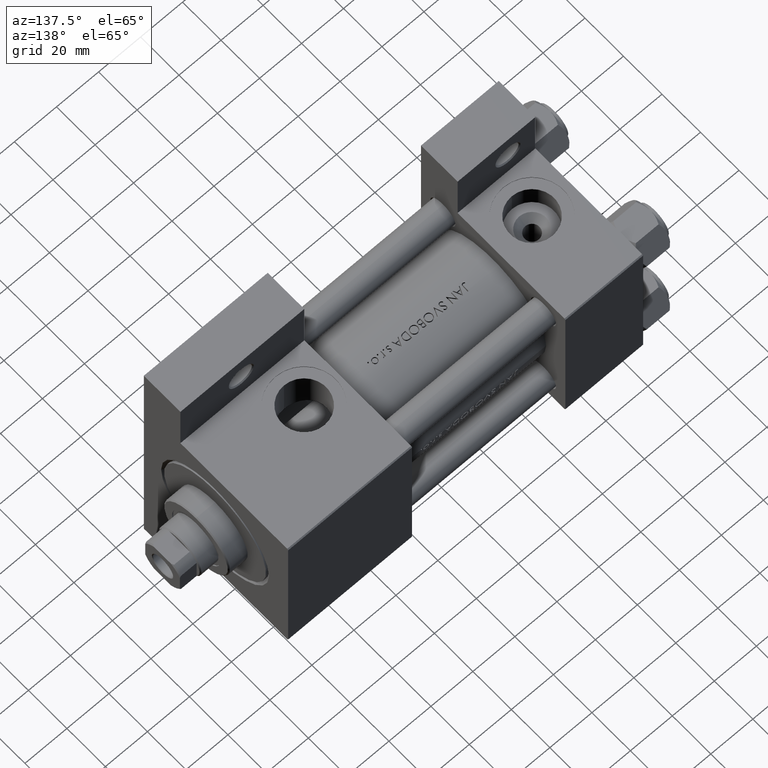
[diagram: clean part render]
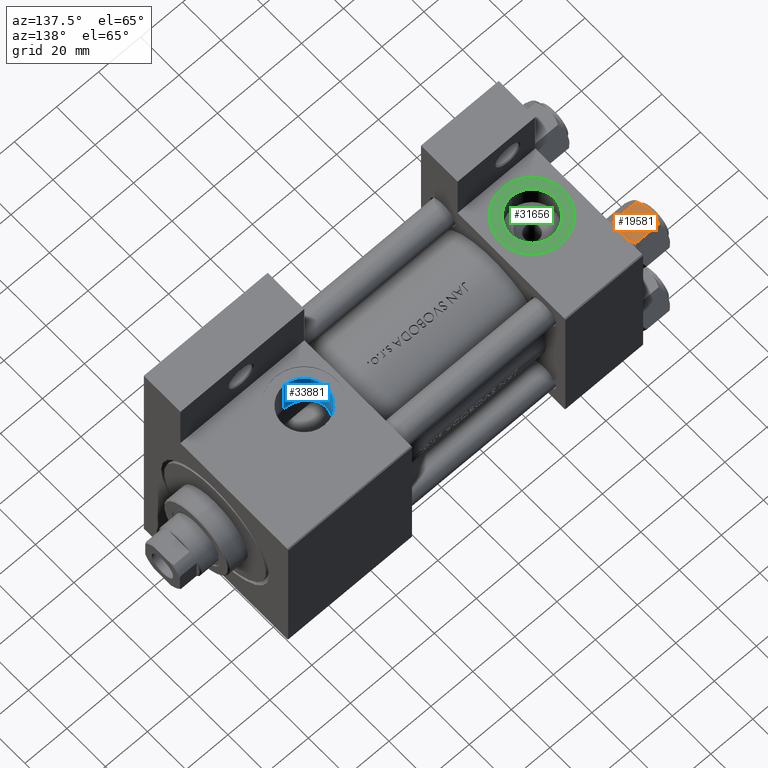
[diagram: same view with three faces highlighted in distinct colors, each labeled with its STEP entity id]
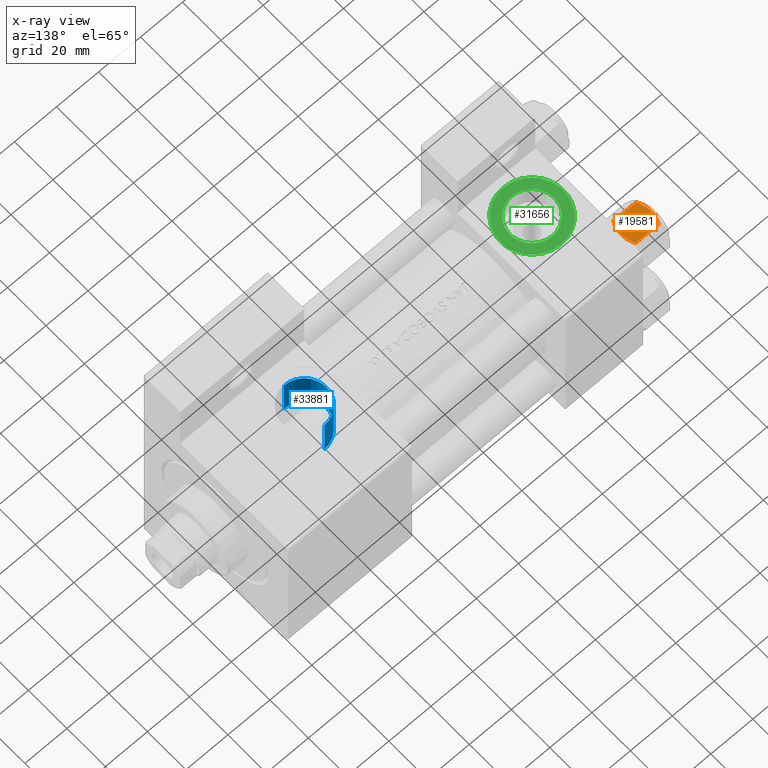
[diagram: x-ray of the same camera — body ghosted, the three highlighted faces saturated]
A machine part, auxiliary view with three faces highlighted in distinct colors.
The next image is the same camera in x-ray (body ghosted, the three faces saturated) — at least one of them is partly hidden behind the body in this view.
Their STEP definitions:

[orange] entity #19581 — the highlighted planar face has unit normal (0, -0, -1).
#24 = CARTESIAN_POINT ( 'NONE',  ( 0.2543996698847487137, -10.06321519197517844, 2.651777813537460036E-15 ) ) ;
#358 = VERTEX_POINT ( 'NONE', #8633 ) ;
#702 = EDGE_CURVE ( 'NONE', #45174, #2791, #14122, .T. ) ;
#1903 = AXIS2_PLACEMENT_3D ( 'NONE', #38361, #4241, #19408 ) ;
#2165 = CARTESIAN_POINT ( 'NONE',  ( 3.958929922320422179, -10.06321519197517489, -13.25786014976459803 ) ) ;
#2791 = VERTEX_POINT ( 'NONE', #45605 ) ;
#2952 = CARTESIAN_POINT ( 'NONE',  ( -1.018274738099085086, -10.06321519197517667, -13.95177257919929126 ) ) ;
#3180 = B_SPLINE_CURVE_WITH_KNOTS ( 'NONE', 3,
 ( #22426, #24, #7491, #33392, #22680, #29661, #41858, #30401, #38127 ),
 .UNSPECIFIED., .F., .F.,
 ( 4, 2, 1, 2, 4 ),
 ( 0.02074012592819902620, 0.02149589804477579011, 0.02225167016135255402, 0.02376321439450608530, 0.02678630286081314441 ),
 .UNSPECIFIED. ) ;
#4241 = DIRECTION ( 'NONE',  ( -1.492877345935290102E-16, 1.000000000000000000, 0.000000000000000000 ) ) ;
#5662 = CARTESIAN_POINT ( 'NONE',  ( 3.474497094393254049, -10.06321519197517667, -13.42730390989572697 ) ) ;
#7011 = EDGE_LOOP ( 'NONE', ( #38909, #26836, #47859, #17389, #16964, #26888 ) ) ;
#7016 = VECTOR ( 'NONE', #15494, 1000.000000000000000 ) ;
#7491 = CARTESIAN_POINT ( 'NONE',  ( 0.5112014849988887333, -10.06321519197517667, -0.009803979428911684807 ) ) ;
#7789 = LINE ( 'NONE', #41665, #7016 ) ;
#8633 = CARTESIAN_POINT ( 'NONE',  ( -5.810000000000000497, -10.06321519197517844, -12.44321519197518455 ) ) ;
#8755 = CARTESIAN_POINT ( 'NONE',  ( 1.502314598737159820E-15, -10.06321519197518022, 0.000000000000000000 ) ) ;
#10078 = VERTEX_POINT ( 'NONE', #34311 ) ;
#11501 = CARTESIAN_POINT ( 'NONE',  ( -5.810000000000000497, -10.06321519197517844, -14.00000000000000000 ) ) ;
#12728 = CARTESIAN_POINT ( 'NONE',  ( -4.900668367960797411, -10.06321519197517844, -1.121556683709773683 ) ) ;
#13132 = CARTESIAN_POINT ( 'NONE',  ( 5.810000000000000497, -10.06321519197517667, -1.556784808024813671 ) ) ;
#14122 = B_SPLINE_CURVE_WITH_KNOTS ( 'NONE', 3,
 ( #46850, #46368, #12728, #20424, #43118, #31660, #22543, #8755 ),
 .UNSPECIFIED., .F., .F.,
 ( 4, 2, 2, 4 ),
 ( 0.01467889604968879505, 0.01619420351931635110, 0.01770951098894391063, 0.02074012592819902620 ),
 .UNSPECIFIED. ) ;
#14402 = CARTESIAN_POINT ( 'NONE',  ( -0.2543996698847483806, -10.06321519197517667, -14.00000000000000355 ) ) ;
#15494 = DIRECTION ( 'NONE',  ( -0.000000000000000000, -0.000000000000000000, 1.000000000000000000 ) ) ;
#16964 = ORIENTED_EDGE ( 'NONE', *, *, #31529, .F. ) ;
#17389 = ORIENTED_EDGE ( 'NONE', *, *, #702, .F. ) ;
#17593 = CARTESIAN_POINT ( 'NONE',  ( 5.359707691559676412, -10.06321519197517844, -12.66836134619534882 ) ) ;
#18127 = CARTESIAN_POINT ( 'NONE',  ( -5.810000000000000497, -10.06321519197517844, -12.44321519197518455 ) ) ;
#19408 = DIRECTION ( 'NONE',  ( -1.000000000000000000, -1.492877345935290102E-16, 0.000000000000000000 ) ) ;
#19581 = ADVANCED_FACE ( 'NONE', ( #19888 ), #23161, .F. ) ;
#19733 = B_SPLINE_CURVE_WITH_KNOTS ( 'NONE', 3,
 ( #31813, #17593, #32548, #2165, #5662, #28820, #29066, #28087 ),
 .UNSPECIFIED., .F., .F.,
 ( 4, 2, 2, 4 ),
 ( 0.01467889604968879332, 0.01619420351931635110, 0.01770951098894391063, 0.02074012592819902620 ),
 .UNSPECIFIED. ) ;
#19888 = FACE_OUTER_BOUND ( 'NONE', #7011, .T. ) ;
#20424 = CARTESIAN_POINT ( 'NONE',  ( -3.958929922320422179, -10.06321519197517667, -0.7421398502353990789 ) ) ;
#22366 = CARTESIAN_POINT ( 'NONE',  ( -3.960942496020602555, -10.06321519197517667, -13.28842716763895737 ) ) ;
#22426 = CARTESIAN_POINT ( 'NONE',  ( 1.502314598737159820E-15, -10.06321519197518022, 0.000000000000000000 ) ) ;
#22543 = CARTESIAN_POINT ( 'NONE',  ( -1.020132157807625450, -10.06321519197517667, 2.398797306624178560E-15 ) ) ;
#22680 = CARTESIAN_POINT ( 'NONE',  ( 1.772424303831127812, -10.06321519197517844, -0.1338870921722363216 ) ) ;
#23161 = PLANE ( 'NONE',  #1903 ) ;
#23188 = DIRECTION ( 'NONE',  ( -0.000000000000000000, -0.000000000000000000, 1.000000000000000000 ) ) ;
#26836 = ORIENTED_EDGE ( 'NONE', *, *, #39019, .T. ) ;
#26888 = ORIENTED_EDGE ( 'NONE', *, *, #29734, .F. ) ;
#28087 = CARTESIAN_POINT ( 'NONE',  ( 1.502314598737159820E-15, -10.06321519197518022, -14.00000000000000000 ) ) ;
#28820 = CARTESIAN_POINT ( 'NONE',  ( 2.013954290287967019, -10.06321519197517489, -13.84298883202400532 ) ) ;
#29066 = CARTESIAN_POINT ( 'NONE',  ( 1.020132157807625672, -10.06321519197517489, -14.00000000000000178 ) ) ;
#29661 = CARTESIAN_POINT ( 'NONE',  ( 2.508586450168040383, -10.06321519197517667, -0.2975752632032270806 ) ) ;
#29734 = EDGE_CURVE ( 'NONE', #45496, #358, #30085, .T. ) ;
#30085 = B_SPLINE_CURVE_WITH_KNOTS ( 'NONE', 3,
 ( #44787, #14402, #37075, #2952, #33335, #32593, #22366, #48036, #18127 ),
 .UNSPECIFIED., .F., .F.,
 ( 4, 2, 1, 2, 4 ),
 ( 0.02074012592819902620, 0.02149589804477579011, 0.02225167016135255749, 0.02376321439450608530, 0.02678630286081314441 ),
 .UNSPECIFIED. ) ;
#30401 = CARTESIAN_POINT ( 'NONE',  ( 4.908816193182379273, -10.06321519197517844, -1.106192904616004835 ) ) ;
#31529 = EDGE_CURVE ( 'NONE', #358, #45174, #34168, .T. ) ;
#31660 = CARTESIAN_POINT ( 'NONE',  ( -2.013954290287966575, -10.06321519197517844, -0.1570111679759964574 ) ) ;
#31813 = CARTESIAN_POINT ( 'NONE',  ( 5.810000000000000497, -10.06321519197517667, -12.44321519197518633 ) ) ;
#32196 = EDGE_CURVE ( 'NONE', #2791, #42864, #3180, .T. ) ;
#32548 = CARTESIAN_POINT ( 'NONE',  ( 4.900668367960796523, -10.06321519197517489, -12.87844331629023209 ) ) ;
#32593 = CARTESIAN_POINT ( 'NONE',  ( -2.508586450168039494, -10.06321519197517844, -13.70242473679676998 ) ) ;
#33335 = CARTESIAN_POINT ( 'NONE',  ( -1.772424303831128478, -10.06321519197517489, -13.86611290782776251 ) ) ;
#33392 = CARTESIAN_POINT ( 'NONE',  ( 1.018274738099085086, -10.06321519197517311, -0.04822742080070722276 ) ) ;
#33482 = EDGE_CURVE ( 'NONE', #10078, #45496, #19733, .T. ) ;
#34168 = LINE ( 'NONE', #11501, #39479 ) ;
#34311 = CARTESIAN_POINT ( 'NONE',  ( 5.810000000000000497, -10.06321519197517667, -12.44321519197518633 ) ) ;
#37075 = CARTESIAN_POINT ( 'NONE',  ( -0.5112014849988886223, -10.06321519197517489, -13.99019602057109068 ) ) ;
#38127 = CARTESIAN_POINT ( 'NONE',  ( 5.810000000000000497, -10.06321519197517667, -1.556784808024813671 ) ) ;
#38361 = CARTESIAN_POINT ( 'NONE',  ( 5.810000000000000497, -10.06321519197517667, -14.00000000000000000 ) ) ;
#38909 = ORIENTED_EDGE ( 'NONE', *, *, #33482, .F. ) ;
#39019 = EDGE_CURVE ( 'NONE', #10078, #42864, #7789, .T. ) ;
#39479 = VECTOR ( 'NONE', #23188, 1000.000000000000000 ) ;
#41665 = CARTESIAN_POINT ( 'NONE',  ( 5.810000000000000497, -10.06321519197517667, -14.00000000000000000 ) ) ;
#41858 = CARTESIAN_POINT ( 'NONE',  ( 3.960942496020602555, -10.06321519197517667, -0.7115728323610392980 ) ) ;
#42864 = VERTEX_POINT ( 'NONE', #13132 ) ;
#42877 = CARTESIAN_POINT ( 'NONE',  ( -5.810000000000000497, -10.06321519197517844, -1.556784808024815225 ) ) ;
#43118 = CARTESIAN_POINT ( 'NONE',  ( -3.474497094393253604, -10.06321519197517844, -0.5726960901042740248 ) ) ;
#44787 = CARTESIAN_POINT ( 'NONE',  ( 1.502314598737159820E-15, -10.06321519197518022, -14.00000000000000000 ) ) ;
#45174 = VERTEX_POINT ( 'NONE', #42877 ) ;
#45496 = VERTEX_POINT ( 'NONE', #46305 ) ;
#45605 = CARTESIAN_POINT ( 'NONE',  ( 1.502314598737159820E-15, -10.06321519197518022, 0.000000000000000000 ) ) ;
#46305 = CARTESIAN_POINT ( 'NONE',  ( 1.502314598737159820E-15, -10.06321519197518022, -14.00000000000000000 ) ) ;
#46368 = CARTESIAN_POINT ( 'NONE',  ( -5.359707691559672860, -10.06321519197517667, -1.331638653804653405 ) ) ;
#46850 = CARTESIAN_POINT ( 'NONE',  ( -5.810000000000000497, -10.06321519197517844, -1.556784808024815225 ) ) ;
#47859 = ORIENTED_EDGE ( 'NONE', *, *, #32196, .F. ) ;
#48036 = CARTESIAN_POINT ( 'NONE',  ( -4.908816193182379273, -10.06321519197517667, -12.89380709538398939 ) ) ;

[blue] entity #33881 — the highlighted cylindrical surface (edge-blend (fillet) strip) has radius 10.48 mm, axis along (-0, -0, 1).
#145 = VERTEX_POINT ( 'NONE', #28107 ) ;
#149 = LINE ( 'NONE', #18558, #26341 ) ;
#201 = VERTEX_POINT ( 'NONE', #43781 ) ;
#1745 = CARTESIAN_POINT ( 'NONE',  ( 124.2485181366844813, -18.10389330548455433, -10.11833674566095276 ) ) ;
#1985 = CARTESIAN_POINT ( 'NONE',  ( 118.4759556616729270, -19.72067553347483582, -6.106406543856686575 ) ) ;
#2234 = CARTESIAN_POINT ( 'NONE',  ( 125.6018487986952579, -17.94656342485972189, -10.40934886090303912 ) ) ;
#2486 = CARTESIAN_POINT ( 'NONE',  ( 116.5217053303387900, -20.48332967077006828, 0.3975496392329742057 ) ) ;
#3434 = DIRECTION ( 'NONE',  ( -0.000000000000000000, -1.000000000000000000, -8.673617379884036705E-17 ) ) ;
#4286 = ORIENTED_EDGE ( 'NONE', *, *, #46250, .F. ) ;
#5727 = CARTESIAN_POINT ( 'NONE',  ( 116.5411270509842012, -20.46474067275494235, 0.7514081746990686206 ) ) ;
#5978 = CARTESIAN_POINT ( 'NONE',  ( 124.5843153394801561, -18.05810427117003414, -10.20365670940336500 ) ) ;
#6221 = CARTESIAN_POINT ( 'NONE',  ( 117.0726434498571535, -20.29999609518735681, -3.376354653621497448 ) ) ;
#6376 = CARTESIAN_POINT ( 'NONE',  ( 121.7374011664607565, -18.12441261360091360, 9.088217275655868121 ) ) ;
#6625 = CARTESIAN_POINT ( 'NONE',  ( 123.2712649677957302, -17.72514759185509803, 9.800086280978517195 ) ) ;
#7581 = DIRECTION ( 'NONE',  ( -0.000000000000000000, -1.000000000000000000, -8.673617379884036705E-17 ) ) ;
#8977 = DIRECTION ( 'NONE',  ( 0.000000000000000000, 0.000000000000000000, -1.000000000000000000 ) ) ;
#9453 = CARTESIAN_POINT ( 'NONE',  ( 117.6245642930965971, -19.83139452378803469, 4.733173975255229315 ) ) ;
#9706 = CARTESIAN_POINT ( 'NONE',  ( 126.2936450912457360, -17.90669148670408362, -10.47999999999997733 ) ) ;
#10201 = CARTESIAN_POINT ( 'NONE',  ( 117.2215461673904713, -20.04967575897763865, 3.785508326117120514 ) ) ;
#11798 = CARTESIAN_POINT ( 'NONE',  ( 127.0000000000000000, 37.50100000000000477, 9.974746723040443104E-15 ) ) ;
#13193 = CARTESIAN_POINT ( 'NONE',  ( 118.6811096513063006, -19.63967553149034373, -6.382942706579984637 ) ) ;
#13438 = CARTESIAN_POINT ( 'NONE',  ( 116.5830884358184107, -20.49411676436529817, -1.342674851160320149 ) ) ;
#13933 = CARTESIAN_POINT ( 'NONE',  ( 119.8154452386612121, -19.21913497042930175, -7.637175280490515306 ) ) ;
#14963 = EDGE_CURVE ( 'NONE', #31898, #18379, #22087, .T. ) ;
#15719 = EDGE_CURVE ( 'NONE', #18379, #145, #20065, .T. ) ;
#16917 = CARTESIAN_POINT ( 'NONE',  ( 117.9495768395414075, -19.66322346998765269, 5.326983638994162717 ) ) ;
#17164 = CARTESIAN_POINT ( 'NONE',  ( 117.5840202247433695, -20.08544715864210062, -4.651927720320705006 ) ) ;
#17409 = CARTESIAN_POINT ( 'NONE',  ( 123.5836453213384090, -18.21117968299172674, -9.913622529243985682 ) ) ;
#17661 = CARTESIAN_POINT ( 'NONE',  ( 116.6144618885458044, -20.41033060918976716, 1.446801902193833422 ) ) ;
#17813 = CARTESIAN_POINT ( 'NONE',  ( 123.5915143732480743, -17.65692230102833093, 9.916186572683963973 ) ) ;
#18379 = VERTEX_POINT ( 'NONE', #23934 ) ;
#18505 = AXIS2_PLACEMENT_3D ( 'NONE', #41348, #44342, #37620 ) ;
#18558 = CARTESIAN_POINT ( 'NONE',  ( 127.0000000000000000, 37.50100000000000477, -10.47999999999997556 ) ) ;
#19270 = VECTOR ( 'NONE', #3434, 1000.000000000000000 ) ;
#20065 = CIRCLE ( 'NONE', #18505, 10.47999999999998622 ) ;
#20892 = CARTESIAN_POINT ( 'NONE',  ( 120.5874752611917700, -18.96115153041447243, -8.296067076494239245 ) ) ;
#21141 = CARTESIAN_POINT ( 'NONE',  ( 116.6681735545246710, -20.37457923911944491, 1.789747077269111308 ) ) ;
#21401 = CARTESIAN_POINT ( 'NONE',  ( 116.8700277560726875, -20.38347105376920254, -2.708475799773464754 ) ) ;
#21554 = CARTESIAN_POINT ( 'NONE',  ( 122.3335954883717420, -17.94904599600547357, 9.408192873974183357 ) ) ;
#22087 = LINE ( 'NONE', #37550, #19270 ) ;
#23934 = CARTESIAN_POINT ( 'NONE',  ( 127.0000000000000000, -37.29999999999999716, 10.47999999999998977 ) ) ;
#24634 = CARTESIAN_POINT ( 'NONE',  ( 121.7109170005340957, -18.62590504215680554, -9.073138281531829108 ) ) ;
#25135 = CARTESIAN_POINT ( 'NONE',  ( 120.8618195419076926, -18.87524337706393140, -8.501152861621337209 ) ) ;
#25383 = CARTESIAN_POINT ( 'NONE',  ( 120.0649927009444866, -19.13289277132431820, -7.864532804023768087 ) ) ;
#26341 = VECTOR ( 'NONE', #37757, 1000.000000000000000 ) ;
#28107 = CARTESIAN_POINT ( 'NONE',  ( 127.0000000000000000, -37.29999999999999716, -10.47999999999998266 ) ) ;
#28383 = CARTESIAN_POINT ( 'NONE',  ( 116.7848721841020421, -20.41767756798353872, -2.366995833931134552 ) ) ;
#28631 = CARTESIAN_POINT ( 'NONE',  ( 118.5187940887307718, -19.38832963419613975, 6.165523076675712311 ) ) ;
#28795 = CARTESIAN_POINT ( 'NONE',  ( 124.2485603725488659, -17.53617776474740353, 10.11820687614873826 ) ) ;
#29723 = EDGE_LOOP ( 'NONE', ( #34550, #42526, #42363, #4286 ) ) ;
#31690 = EDGE_CURVE ( 'NONE', #201, #31898, #33518, .T. ) ;
#31898 = VERTEX_POINT ( 'NONE', #40187 ) ;
#32119 = CARTESIAN_POINT ( 'NONE',  ( 116.8951751743530423, -20.23535558307757753, 2.800358647656731481 ) ) ;
#32364 = CARTESIAN_POINT ( 'NONE',  ( 117.1894306476518182, -20.25102656977831117, -3.701459934073192848 ) ) ;
#32858 = CARTESIAN_POINT ( 'NONE',  ( 116.8085289422961495, -20.28709306372374144, 2.466525892830130573 ) ) ;
#33017 = CARTESIAN_POINT ( 'NONE',  ( 125.6144639565821564, -17.35559248084098272, 10.41144764597006045 ) ) ;
#33518 = B_SPLINE_CURVE_WITH_KNOTS ( 'NONE', 3,
 ( #36352, #9706, #2234, #5978, #1745, #17409, #48058, #44071, #24634, #25135, #20892, #25383, #13933, #40590, #40337, #13193, #1985, #35859, #17164, #32364, #6221, #21401, #28383, #13438, #36600, #2486, #5727, #17661, #21141, #32858, #32119, #44317, #10201, #9453, #16917, #28631, #47320, #43578, #39838, #43824, #40085, #6376, #21554, #6625, #17813, #28795, #40497, #33017, #36262, #36763 ),
 .UNSPECIFIED., .F., .F.,
 ( 4, 2, 2, 2, 2, 2, 2, 2, 2, 2, 2, 2, 2, 2, 2, 2, 2, 2, 2, 2, 2, 2, 2, 2, 4 ),
 ( 0.000000000000000000, 0.002085732680859815006, 0.003128599021289701475, 0.004171465361719587511, 0.006257198042579322286, 0.007300064383009191409, 0.008342930723439058796, 0.009385797063868928786, 0.01042866340429879878, 0.01251439608515850926, 0.01355726242558837231, 0.01460012876601823537, 0.01668586144687796841, 0.01772872778730783666, 0.01877159412773770839, 0.01981446046816757664, 0.02085732680859744836, 0.02294305948945717100, 0.02398592582988703231, 0.02502879217031689710, 0.02711452485117662320, 0.02920025753203634930, 0.03024312387246621062, 0.03128599021289607540, 0.03337172289375579803 ),
 .UNSPECIFIED. ) ;
#33881 = ADVANCED_FACE ( 'NONE', ( #46822 ), #45916, .F. ) ;
#34550 = ORIENTED_EDGE ( 'NONE', *, *, #31690, .T. ) ;
#35859 = CARTESIAN_POINT ( 'NONE',  ( 117.9055833317326147, -19.95017549749732666, -5.252667561004567887 ) ) ;
#36262 = CARTESIAN_POINT ( 'NONE',  ( 126.3044545345209713, -17.31154528053461306, 10.47999999999998799 ) ) ;
#36352 = CARTESIAN_POINT ( 'NONE',  ( 127.0000000000000000, -17.90669148670408362, -10.47999999999998089 ) ) ;
#36600 = CARTESIAN_POINT ( 'NONE',  ( 116.5169168091323257, -20.51137673509302317, -0.6516029565374266141 ) ) ;
#36763 = CARTESIAN_POINT ( 'NONE',  ( 127.0000000000000000, -17.31154528053461306, 10.47999999999999154 ) ) ;
#37550 = CARTESIAN_POINT ( 'NONE',  ( 127.0000000000000000, 37.50100000000000477, 10.47999999999999687 ) ) ;
#37620 = DIRECTION ( 'NONE',  ( 0.000000000000000000, 0.000000000000000000, -1.000000000000000000 ) ) ;
#37757 = DIRECTION ( 'NONE',  ( -0.000000000000000000, -1.000000000000000000, -8.673617379884036705E-17 ) ) ;
#39838 = CARTESIAN_POINT ( 'NONE',  ( 119.3809730746911555, -18.99918516550076575, 7.203644680487132135 ) ) ;
#40085 = CARTESIAN_POINT ( 'NONE',  ( 120.6096037740494609, -18.50380750299995825, 8.333875197508964661 ) ) ;
#40187 = CARTESIAN_POINT ( 'NONE',  ( 127.0000000000000000, -17.31154528053461306, 10.47999999999999154 ) ) ;
#40337 = CARTESIAN_POINT ( 'NONE',  ( 119.1121230715595800, -19.47452367214849644, -6.908494176797783659 ) ) ;
#40497 = CARTESIAN_POINT ( 'NONE',  ( 124.5877247240034080, -17.48338598744718198, 10.20456839096644686 ) ) ;
#40590 = CARTESIAN_POINT ( 'NONE',  ( 119.3390100190131591, -19.38994764023254191, -7.159155389767041910 ) ) ;
#41152 = AXIS2_PLACEMENT_3D ( 'NONE', #11798, #7581, #8977 ) ;
#41348 = CARTESIAN_POINT ( 'NONE',  ( 127.0000000000000000, -37.29999999999999716, 3.486794186713383443E-15 ) ) ;
#42363 = ORIENTED_EDGE ( 'NONE', *, *, #15719, .T. ) ;
#42526 = ORIENTED_EDGE ( 'NONE', *, *, #14963, .T. ) ;
#43578 = CARTESIAN_POINT ( 'NONE',  ( 119.1545344758438176, -19.09783805311037952, 6.956499678098870376 ) ) ;
#43781 = CARTESIAN_POINT ( 'NONE',  ( 127.0000000000000000, -17.90669148670408362, -10.47999999999998089 ) ) ;
#43824 = CARTESIAN_POINT ( 'NONE',  ( 120.0925800491787214, -18.70257500022393060, 7.909780117561123980 ) ) ;
#44071 = CARTESIAN_POINT ( 'NONE',  ( 122.3089432184007137, -18.47132649600307630, -9.396531025392590664 ) ) ;
#44317 = CARTESIAN_POINT ( 'NONE',  ( 117.1012934303698501, -20.11685413836227809, 3.459060791729253737 ) ) ;
#44342 = DIRECTION ( 'NONE',  ( 0.000000000000000000, -1.000000000000000000, -8.673617379884036705E-17 ) ) ;
#45916 = CYLINDRICAL_SURFACE ( 'NONE', #41152, 10.47999999999998622 ) ;
#46250 = EDGE_CURVE ( 'NONE', #201, #145, #149, .T. ) ;
#46822 = FACE_OUTER_BOUND ( 'NONE', #29723, .T. ) ;
#47320 = CARTESIAN_POINT ( 'NONE',  ( 118.7233602415655582, -19.29242988523072100, 6.437503504559504819 ) ) ;
#48058 = CARTESIAN_POINT ( 'NONE',  ( 123.2574528650404204, -18.27226487592814408, -9.794965196591768120 ) ) ;

[green] entity #31656 — the highlighted planar face has unit normal (0, -0, 1).
#995 = VERTEX_POINT ( 'NONE', #45824 ) ;
#3515 = ORIENTED_EDGE ( 'NONE', *, *, #13562, .F. ) ;
#3735 = ORIENTED_EDGE ( 'NONE', *, *, #20626, .T. ) ;
#4752 = DIRECTION ( 'NONE',  ( 0.000000000000000000, 8.673617379884036705E-17, -1.000000000000000000 ) ) ;
#5243 = FACE_BOUND ( 'NONE', #43105, .T. ) ;
#5515 = ORIENTED_EDGE ( 'NONE', *, *, #15547, .T. ) ;
#5711 = AXIS2_PLACEMENT_3D ( 'NONE', #15714, #27173, #11986 ) ;
#7813 = ORIENTED_EDGE ( 'NONE', *, *, #21099, .F. ) ;
#8506 = DIRECTION ( 'NONE',  ( 0.000000000000000000, 0.000000000000000000, -1.000000000000000000 ) ) ;
#10425 = DIRECTION ( 'NONE',  ( 0.000000000000000000, -1.000000000000000000, -8.673617379884036705E-17 ) ) ;
#11986 = DIRECTION ( 'NONE',  ( 0.000000000000000000, 0.000000000000000000, -1.000000000000000000 ) ) ;
#13562 = EDGE_CURVE ( 'NONE', #32724, #40483, #20800, .T. ) ;
#13671 = CIRCLE ( 'NONE', #21630, 15.00000000000000178 ) ;
#13887 = CIRCLE ( 'NONE', #26582, 15.00000000000000178 ) ;
#13919 = CIRCLE ( 'NONE', #45720, 10.48000000000000043 ) ;
#15547 = EDGE_CURVE ( 'NONE', #995, #44504, #13671, .T. ) ;
#15614 = AXIS2_PLACEMENT_3D ( 'NONE', #35618, #23424, #4752 ) ;
#15714 = CARTESIAN_POINT ( 'NONE',  ( 18.50000000000000000, -37.30000000000000426, -3.452099717193846907E-15 ) ) ;
#15970 = CARTESIAN_POINT ( 'NONE',  ( 18.50000000000000000, -37.30000000000000426, -3.452099717193846907E-15 ) ) ;
#18187 = DIRECTION ( 'NONE',  ( 0.000000000000000000, -1.000000000000000000, -8.673617379884036705E-17 ) ) ;
#20174 = CARTESIAN_POINT ( 'NONE',  ( 18.50000000000000355, -37.30000000000000426, 14.99999999999999822 ) ) ;
#20401 = FACE_OUTER_BOUND ( 'NONE', #47795, .T. ) ;
#20626 = EDGE_CURVE ( 'NONE', #44504, #995, #13887, .T. ) ;
#20800 = CIRCLE ( 'NONE', #5711, 10.48000000000000043 ) ;
#21099 = EDGE_CURVE ( 'NONE', #40483, #32724, #13919, .T. ) ;
#21630 = AXIS2_PLACEMENT_3D ( 'NONE', #15970, #34669, #8506 ) ;
#23424 = DIRECTION ( 'NONE',  ( 0.000000000000000000, -1.000000000000000000, -8.673617379884036705E-17 ) ) ;
#26091 = DIRECTION ( 'NONE',  ( 0.000000000000000000, 0.000000000000000000, -1.000000000000000000 ) ) ;
#26582 = AXIS2_PLACEMENT_3D ( 'NONE', #39883, #18187, #28676 ) ;
#27173 = DIRECTION ( 'NONE',  ( 0.000000000000000000, -1.000000000000000000, -8.673617379884036705E-17 ) ) ;
#27508 = CARTESIAN_POINT ( 'NONE',  ( 18.50000000000000000, -37.30000000000000426, -10.48000000000000398 ) ) ;
#28676 = DIRECTION ( 'NONE',  ( 0.000000000000000000, 0.000000000000000000, -1.000000000000000000 ) ) ;
#31656 = ADVANCED_FACE ( 'NONE', ( #5243, #20401 ), #42607, .T. ) ;
#32052 = CARTESIAN_POINT ( 'NONE',  ( 18.50000000000000000, -37.30000000000000426, 10.47999999999999687 ) ) ;
#32724 = VERTEX_POINT ( 'NONE', #32052 ) ;
#34669 = DIRECTION ( 'NONE',  ( 0.000000000000000000, -1.000000000000000000, -8.673617379884036705E-17 ) ) ;
#35618 = CARTESIAN_POINT ( 'NONE',  ( 18.50000000000000000, -37.30000000000000426, -3.452099717193846907E-15 ) ) ;
#39883 = CARTESIAN_POINT ( 'NONE',  ( 18.50000000000000000, -37.30000000000000426, -3.452099717193846907E-15 ) ) ;
#40483 = VERTEX_POINT ( 'NONE', #27508 ) ;
#42607 = PLANE ( 'NONE',  #15614 ) ;
#43105 = EDGE_LOOP ( 'NONE', ( #7813, #3515 ) ) ;
#44504 = VERTEX_POINT ( 'NONE', #20174 ) ;
#45720 = AXIS2_PLACEMENT_3D ( 'NONE', #48030, #10425, #26091 ) ;
#45824 = CARTESIAN_POINT ( 'NONE',  ( 18.50000000000000000, -37.30000000000000426, -15.00000000000000533 ) ) ;
#47795 = EDGE_LOOP ( 'NONE', ( #5515, #3735 ) ) ;
#48030 = CARTESIAN_POINT ( 'NONE',  ( 18.50000000000000000, -37.30000000000000426, -3.452099717193846907E-15 ) ) ;